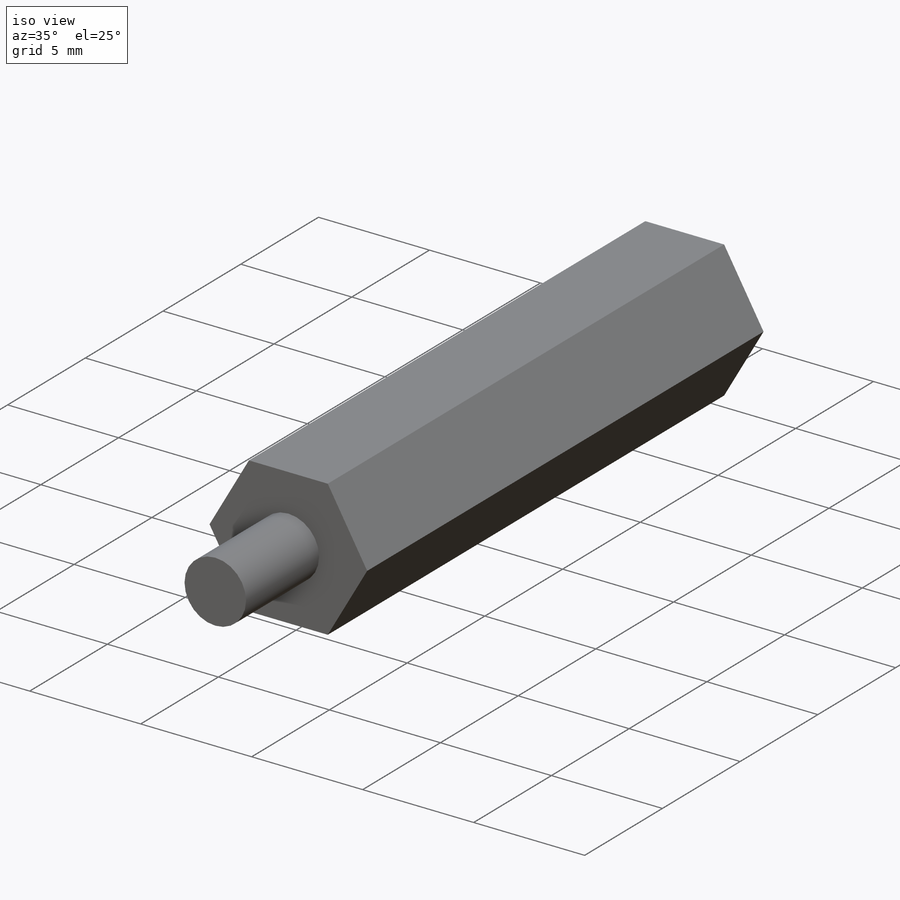
[diagram: iso view]
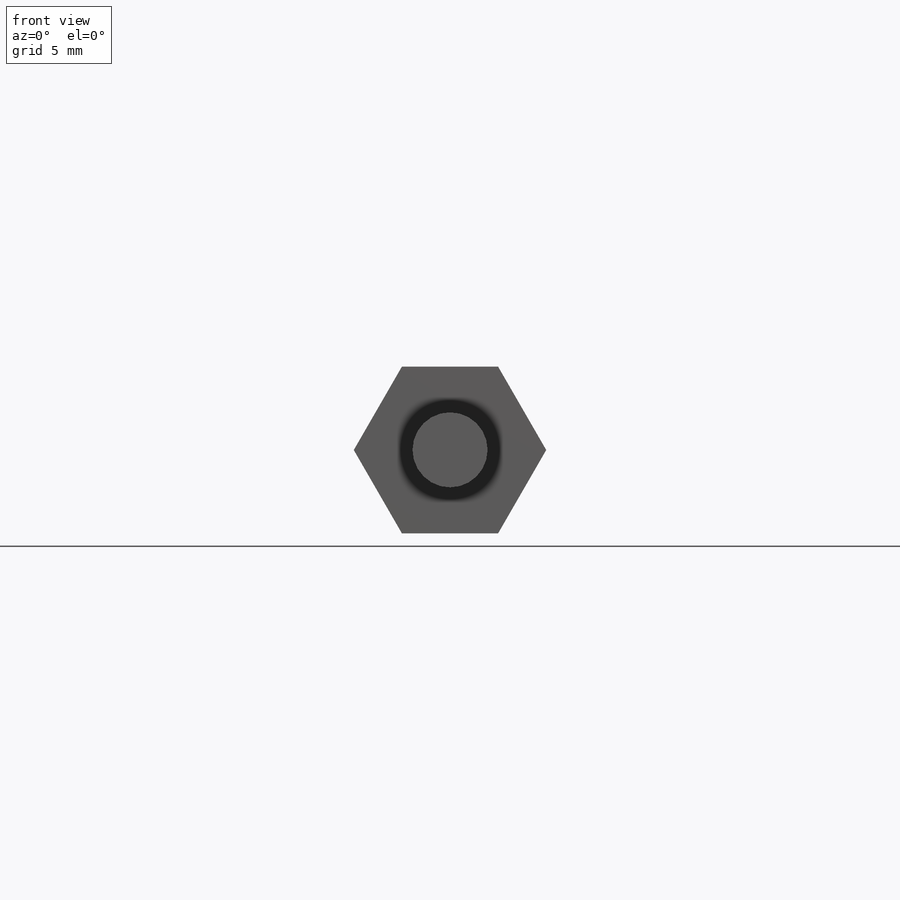
[diagram: front view]
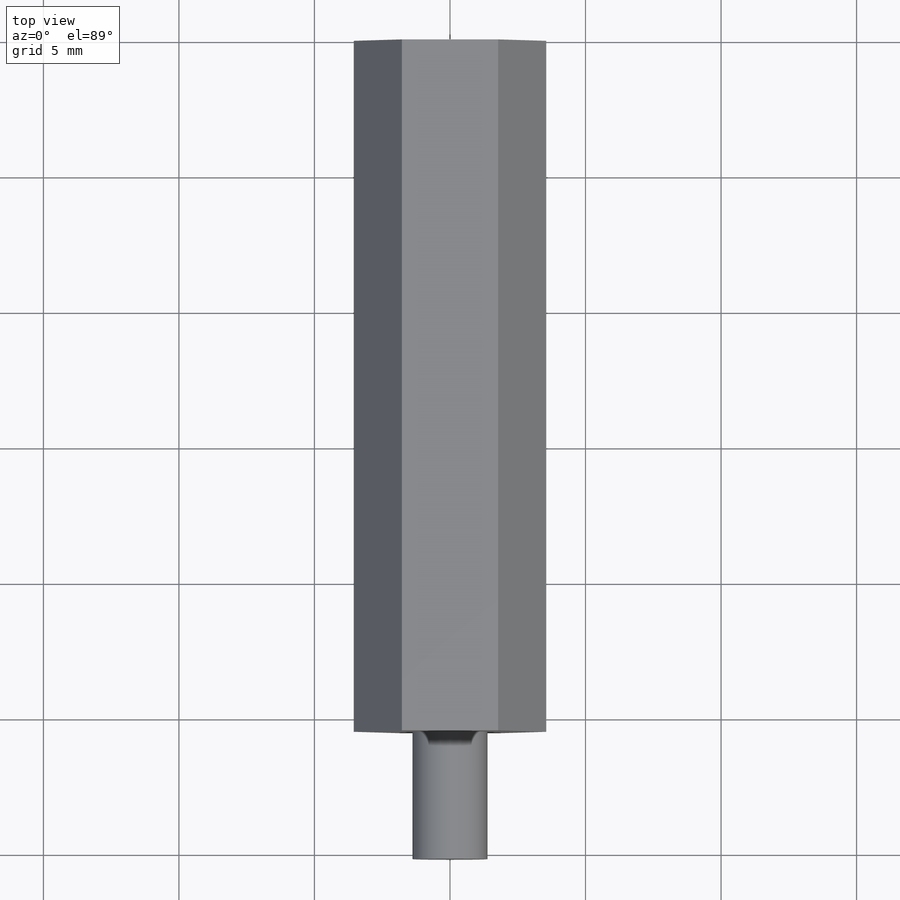
[diagram: top view]
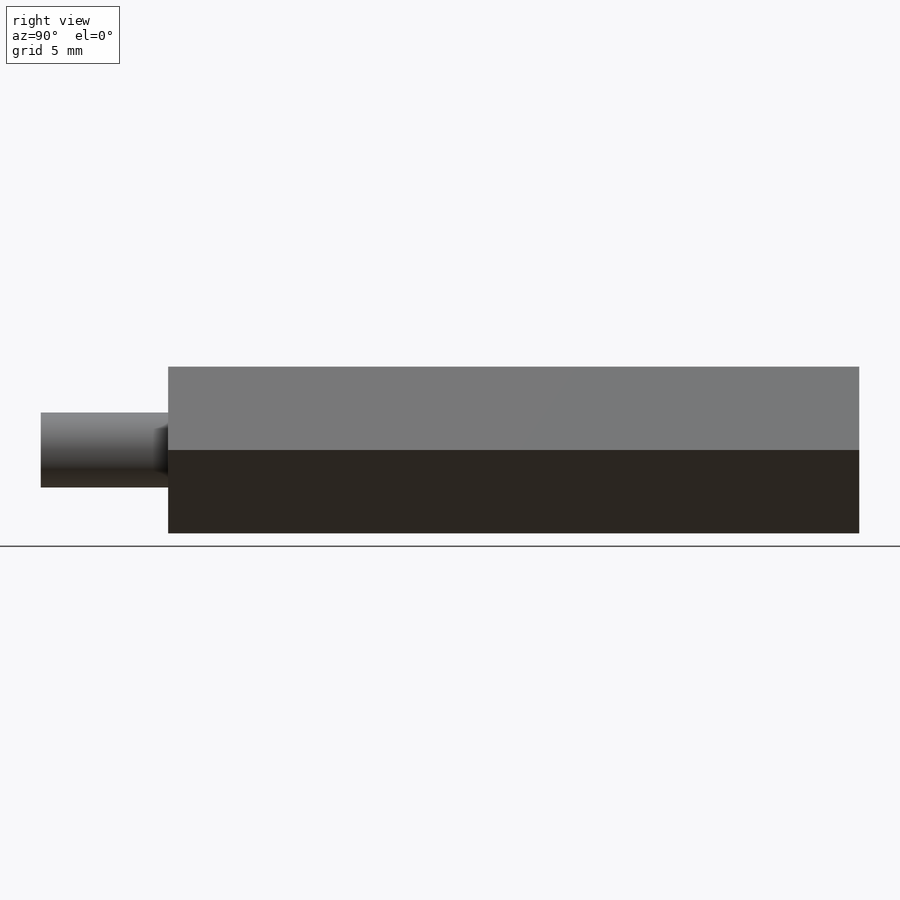
[diagram: right view]
SOLIDWORKS PART (.sldprt)
format: sldprt  version: not decoded by parser v0  size: 155,136 bytes
history: native  units: mm
features: plane x3, sketch x3, extrude x2, material x1, cut_extrude x1 (+10 scaffold rows collapsed)
feature tree (20):
  scaffold x10  (default folders/planes/origin — collapsed)
  material  "Matériau <non spécifié>"
  plane  "Plan de face"
  plane  "Plan de dessus"
  plane  "Plan de droite"
  sketch  "Esquisse1"
  extrude  "Boss.-Extru.1"  Depth=25.5mm
  sketch  "Esquisse2"  dims[D1=2.77mm]
  extrude  "Boss.-Extru.2"  Depth=4.7mm
  sketch  "Esquisse3"  dims[D1=~1.294711mm]
  cut_extrude  "Enlèv. mat.-Extru.1"  Depth=4.7mm
decode coverage: 5 of 6 modeling features carry decoded parameters
note: ~ marks probable driven/reference dimensions
note: suppression state not decoded; provenance and decode notes live in map.json
